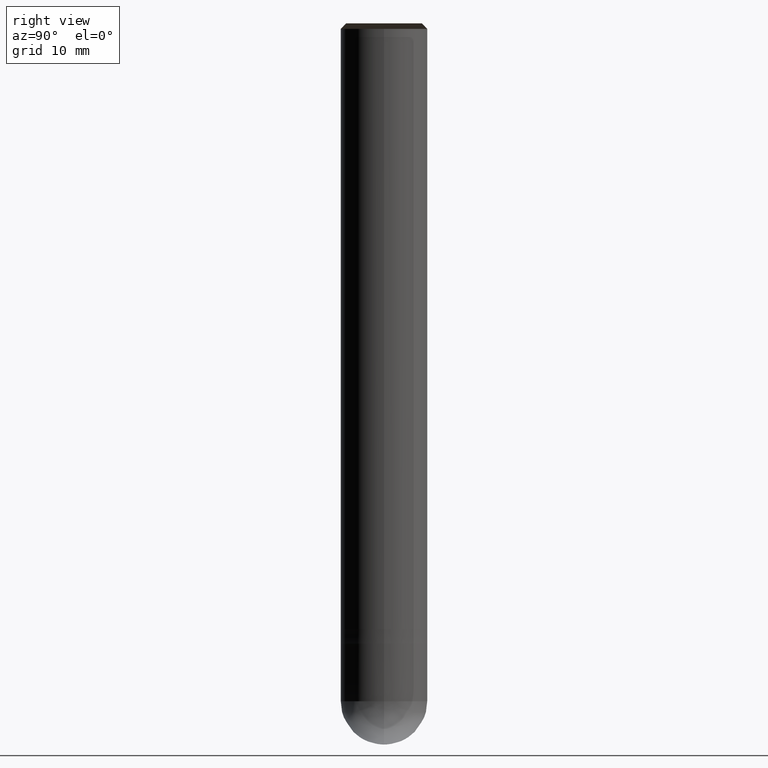
[diagram: clean part render]
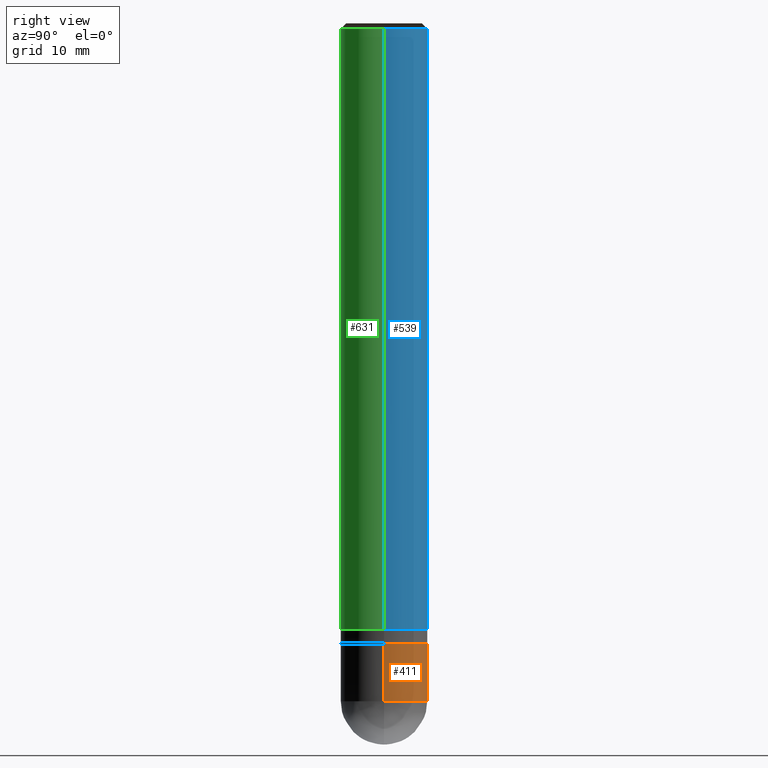
[diagram: same view with three faces highlighted in distinct colors, each labeled with its STEP entity id]
A machine part, right view with three faces highlighted in distinct colors.
Their STEP definitions:

[orange] entity #411 — the highlighted face is a freeform B-spline surface patch.
#326=CARTESIAN_POINT('',(6.0,0.0,-10.0));
#327=CARTESIAN_POINT('',(6.0,6.0,-10.0));
#328=CARTESIAN_POINT('',(0.0,6.0,-10.0));
#329=CARTESIAN_POINT('',(-6.0,6.0,-10.0));
#330=CARTESIAN_POINT('',(-6.0,0.0,-10.0));
#331=CARTESIAN_POINT('',(6.0,0.0,-2.0));
#332=CARTESIAN_POINT('',(6.0,6.0,-2.0));
#333=CARTESIAN_POINT('',(0.0,6.0,-2.0));
#334=CARTESIAN_POINT('',(-6.0,6.0,-2.0));
#335=CARTESIAN_POINT('',(-6.0,0.0,-2.0));
#392=(
BOUNDED_SURFACE()
B_SPLINE_SURFACE(1,2,(
(#326,#327,#328,#329,#330),
(#331,#332,#333,#334,#335)
), .UNSPECIFIED.,.F.,.F.,.F.)
B_SPLINE_SURFACE_WITH_KNOTS((2,2),(3,2,3),(
0.0,1.0),(
0.0,0.5,1.0), .UNSPECIFIED.)
GEOMETRIC_REPRESENTATION_ITEM()
RATIONAL_B_SPLINE_SURFACE(((1.0,0.707106781187,1.0,0.707106781187,1.0),
(1.0,0.707106781187,1.0,0.707106781187,1.0)
))
REPRESENTATION_ITEM('')
SURFACE()
);
#393=(
BOUNDED_CURVE()
B_SPLINE_CURVE(2,(#330,#329,#328,#327,#326),.UNSPECIFIED.,.F.,.F.)
B_SPLINE_CURVE_WITH_KNOTS((3,2,3),
(0.0,0.5,1.0),.UNSPECIFIED.)
CURVE()
GEOMETRIC_REPRESENTATION_ITEM()
RATIONAL_B_SPLINE_CURVE((1.0,0.707106781187,1.0,0.707106781187,1.0))
REPRESENTATION_ITEM('')
);
#394=(
BOUNDED_CURVE()
B_SPLINE_CURVE(1,(#326,#331),.UNSPECIFIED.,.F.,.F.)
B_SPLINE_CURVE_WITH_KNOTS((2,2),
(0.0,1.0),.UNSPECIFIED.)
CURVE()
GEOMETRIC_REPRESENTATION_ITEM()
RATIONAL_B_SPLINE_CURVE((1.0,1.0))
REPRESENTATION_ITEM('')
);
#395=(
BOUNDED_CURVE()
B_SPLINE_CURVE(2,(#331,#332,#333,#334,#335),.UNSPECIFIED.,.F.,.F.)
B_SPLINE_CURVE_WITH_KNOTS((3,2,3),
(0.0,0.5,1.0),.UNSPECIFIED.)
CURVE()
GEOMETRIC_REPRESENTATION_ITEM()
RATIONAL_B_SPLINE_CURVE((1.0,0.707106781187,1.0,0.707106781187,1.0))
REPRESENTATION_ITEM('')
);
#396=(
BOUNDED_CURVE()
B_SPLINE_CURVE(1,(#335,#330),.UNSPECIFIED.,.F.,.F.)
B_SPLINE_CURVE_WITH_KNOTS((2,2),
(0.0,1.0),.UNSPECIFIED.)
CURVE()
GEOMETRIC_REPRESENTATION_ITEM()
RATIONAL_B_SPLINE_CURVE((1.0,1.0))
REPRESENTATION_ITEM('')
);
#397=VERTEX_POINT('',#326);
#398=VERTEX_POINT('',#330);
#399=VERTEX_POINT('',#331);
#400=VERTEX_POINT('',#335);
#401=EDGE_CURVE('',#398,#397,#393,.T.);
#402=EDGE_CURVE('',#397,#399,#394,.T.);
#403=EDGE_CURVE('',#399,#400,#395,.T.);
#404=EDGE_CURVE('',#400,#398,#396,.T.);
#405=ORIENTED_EDGE('',*,*,#401,.T.);
#406=ORIENTED_EDGE('',*,*,#402,.T.);
#407=ORIENTED_EDGE('',*,*,#403,.T.);
#408=ORIENTED_EDGE('',*,*,#404,.T.);
#409=EDGE_LOOP('',(#405,#406,#407,#408));
#410=FACE_OUTER_BOUND('',#409,.T.);
#411=ADVANCED_FACE('',(#410),#392,.T.);

[blue] entity #539 — the highlighted face is a freeform B-spline surface patch.
#346=CARTESIAN_POINT('',(6.0,0.0,0.0));
#347=CARTESIAN_POINT('',(6.0,6.0,0.0));
#348=CARTESIAN_POINT('',(0.0,6.0,0.0));
#349=CARTESIAN_POINT('',(-6.0,6.0,0.0));
#350=CARTESIAN_POINT('',(-6.0,0.0,0.0));
#351=CARTESIAN_POINT('',(6.0,0.0,83.25));
#352=CARTESIAN_POINT('',(6.0,6.0,83.25));
#353=CARTESIAN_POINT('',(0.0,6.0,83.25));
#354=CARTESIAN_POINT('',(-6.0,6.0,83.25));
#355=CARTESIAN_POINT('',(-6.0,0.0,83.25));
#520=(
BOUNDED_SURFACE()
B_SPLINE_SURFACE(1,2,(
(#346,#347,#348,#349,#350),
(#351,#352,#353,#354,#355)
), .UNSPECIFIED.,.F.,.F.,.F.)
B_SPLINE_SURFACE_WITH_KNOTS((2,2),(3,2,3),(
0.0,1.0),(
0.0,0.5,1.0), .UNSPECIFIED.)
GEOMETRIC_REPRESENTATION_ITEM()
RATIONAL_B_SPLINE_SURFACE(((1.0,0.707106781187,1.0,0.707106781187,1.0),
(1.0,0.707106781187,1.0,0.707106781187,1.0)
))
REPRESENTATION_ITEM('')
SURFACE()
);
#521=(
BOUNDED_CURVE()
B_SPLINE_CURVE(2,(#350,#349,#348,#347,#346),.UNSPECIFIED.,.F.,.F.)
B_SPLINE_CURVE_WITH_KNOTS((3,2,3),
(0.0,0.5,1.0),.UNSPECIFIED.)
CURVE()
GEOMETRIC_REPRESENTATION_ITEM()
RATIONAL_B_SPLINE_CURVE((1.0,0.707106781187,1.0,0.707106781187,1.0))
REPRESENTATION_ITEM('')
);
#522=(
BOUNDED_CURVE()
B_SPLINE_CURVE(1,(#346,#351),.UNSPECIFIED.,.F.,.F.)
B_SPLINE_CURVE_WITH_KNOTS((2,2),
(0.0,1.0),.UNSPECIFIED.)
CURVE()
GEOMETRIC_REPRESENTATION_ITEM()
RATIONAL_B_SPLINE_CURVE((1.0,1.0))
REPRESENTATION_ITEM('')
);
#523=(
BOUNDED_CURVE()
B_SPLINE_CURVE(2,(#351,#352,#353,#354,#355),.UNSPECIFIED.,.F.,.F.)
B_SPLINE_CURVE_WITH_KNOTS((3,2,3),
(0.0,0.5,1.0),.UNSPECIFIED.)
CURVE()
GEOMETRIC_REPRESENTATION_ITEM()
RATIONAL_B_SPLINE_CURVE((1.0,0.707106781187,1.0,0.707106781187,1.0))
REPRESENTATION_ITEM('')
);
#524=(
BOUNDED_CURVE()
B_SPLINE_CURVE(1,(#355,#350),.UNSPECIFIED.,.F.,.F.)
B_SPLINE_CURVE_WITH_KNOTS((2,2),
(0.0,1.0),.UNSPECIFIED.)
CURVE()
GEOMETRIC_REPRESENTATION_ITEM()
RATIONAL_B_SPLINE_CURVE((1.0,1.0))
REPRESENTATION_ITEM('')
);
#525=VERTEX_POINT('',#346);
#526=VERTEX_POINT('',#350);
#527=VERTEX_POINT('',#351);
#528=VERTEX_POINT('',#355);
#529=EDGE_CURVE('',#526,#525,#521,.T.);
#530=EDGE_CURVE('',#525,#527,#522,.T.);
#531=EDGE_CURVE('',#527,#528,#523,.T.);
#532=EDGE_CURVE('',#528,#526,#524,.T.);
#533=ORIENTED_EDGE('',*,*,#529,.T.);
#534=ORIENTED_EDGE('',*,*,#530,.T.);
#535=ORIENTED_EDGE('',*,*,#531,.T.);
#536=ORIENTED_EDGE('',*,*,#532,.T.);
#537=EDGE_LOOP('',(#533,#534,#535,#536));
#538=FACE_OUTER_BOUND('',#537,.T.);
#539=ADVANCED_FACE('',(#538),#520,.T.);

[green] entity #631 — the highlighted face is a freeform B-spline surface patch.
#346=CARTESIAN_POINT('',(6.0,0.0,0.0));
#350=CARTESIAN_POINT('',(-6.0,0.0,0.0));
#351=CARTESIAN_POINT('',(6.0,0.0,83.25));
#355=CARTESIAN_POINT('',(-6.0,0.0,83.25));
#362=CARTESIAN_POINT('',(-6.0,-6.0,0.0));
#363=CARTESIAN_POINT('',(0.0,-6.0,0.0));
#364=CARTESIAN_POINT('',(6.0,-6.0,0.0));
#365=CARTESIAN_POINT('',(-6.0,-6.0,83.25));
#366=CARTESIAN_POINT('',(0.0,-6.0,83.25));
#367=CARTESIAN_POINT('',(6.0,-6.0,83.25));
#612=(
BOUNDED_SURFACE()
B_SPLINE_SURFACE(1,2,(
(#350,#362,#363,#364,#346),
(#355,#365,#366,#367,#351)
), .UNSPECIFIED.,.F.,.F.,.F.)
B_SPLINE_SURFACE_WITH_KNOTS((2,2),(3,2,3),(
0.0,1.0),(
0.0,0.5,1.0), .UNSPECIFIED.)
GEOMETRIC_REPRESENTATION_ITEM()
RATIONAL_B_SPLINE_SURFACE(((1.0,0.707106781187,1.0,0.707106781187,1.0),
(1.0,0.707106781187,1.0,0.707106781187,1.0)
))
REPRESENTATION_ITEM('')
SURFACE()
);
#613=(
BOUNDED_CURVE()
B_SPLINE_CURVE(2,(#346,#364,#363,#362,#350),.UNSPECIFIED.,.F.,.F.)
B_SPLINE_CURVE_WITH_KNOTS((3,2,3),
(0.0,0.5,1.0),.UNSPECIFIED.)
CURVE()
GEOMETRIC_REPRESENTATION_ITEM()
RATIONAL_B_SPLINE_CURVE((1.0,0.707106781187,1.0,0.707106781187,1.0))
REPRESENTATION_ITEM('')
);
#614=(
BOUNDED_CURVE()
B_SPLINE_CURVE(1,(#350,#355),.UNSPECIFIED.,.F.,.F.)
B_SPLINE_CURVE_WITH_KNOTS((2,2),
(0.0,1.0),.UNSPECIFIED.)
CURVE()
GEOMETRIC_REPRESENTATION_ITEM()
RATIONAL_B_SPLINE_CURVE((1.0,1.0))
REPRESENTATION_ITEM('')
);
#615=(
BOUNDED_CURVE()
B_SPLINE_CURVE(2,(#355,#365,#366,#367,#351),.UNSPECIFIED.,.F.,.F.)
B_SPLINE_CURVE_WITH_KNOTS((3,2,3),
(0.0,0.5,1.0),.UNSPECIFIED.)
CURVE()
GEOMETRIC_REPRESENTATION_ITEM()
RATIONAL_B_SPLINE_CURVE((1.0,0.707106781187,1.0,0.707106781187,1.0))
REPRESENTATION_ITEM('')
);
#616=(
BOUNDED_CURVE()
B_SPLINE_CURVE(1,(#351,#346),.UNSPECIFIED.,.F.,.F.)
B_SPLINE_CURVE_WITH_KNOTS((2,2),
(0.0,1.0),.UNSPECIFIED.)
CURVE()
GEOMETRIC_REPRESENTATION_ITEM()
RATIONAL_B_SPLINE_CURVE((1.0,1.0))
REPRESENTATION_ITEM('')
);
#617=VERTEX_POINT('',#346);
#618=VERTEX_POINT('',#350);
#619=VERTEX_POINT('',#351);
#620=VERTEX_POINT('',#355);
#621=EDGE_CURVE('',#617,#618,#613,.T.);
#622=EDGE_CURVE('',#618,#620,#614,.T.);
#623=EDGE_CURVE('',#620,#619,#615,.T.);
#624=EDGE_CURVE('',#619,#617,#616,.T.);
#625=ORIENTED_EDGE('',*,*,#621,.T.);
#626=ORIENTED_EDGE('',*,*,#622,.T.);
#627=ORIENTED_EDGE('',*,*,#623,.T.);
#628=ORIENTED_EDGE('',*,*,#624,.T.);
#629=EDGE_LOOP('',(#625,#626,#627,#628));
#630=FACE_OUTER_BOUND('',#629,.T.);
#631=ADVANCED_FACE('',(#630),#612,.T.);